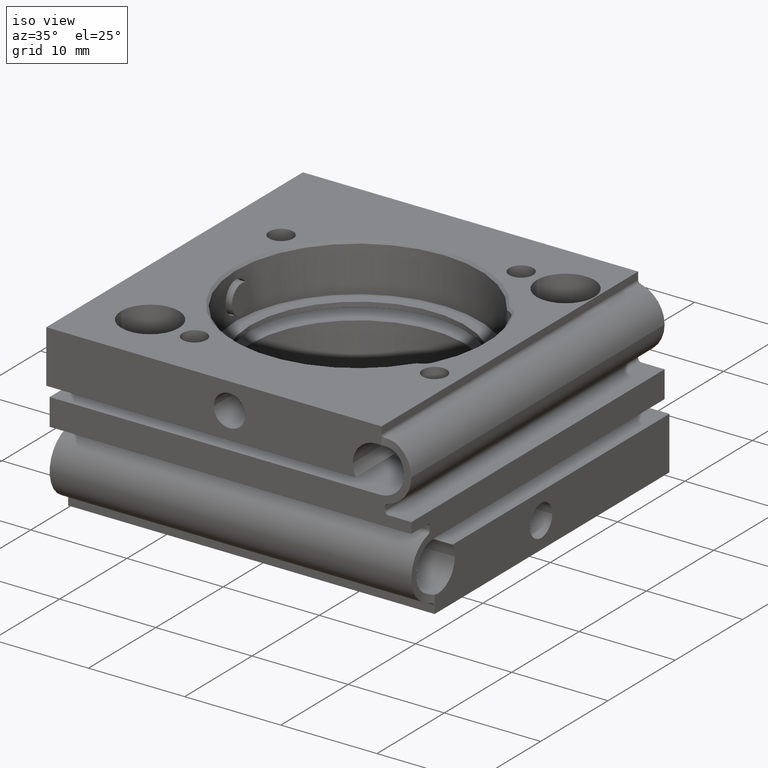
[diagram: clean part render]
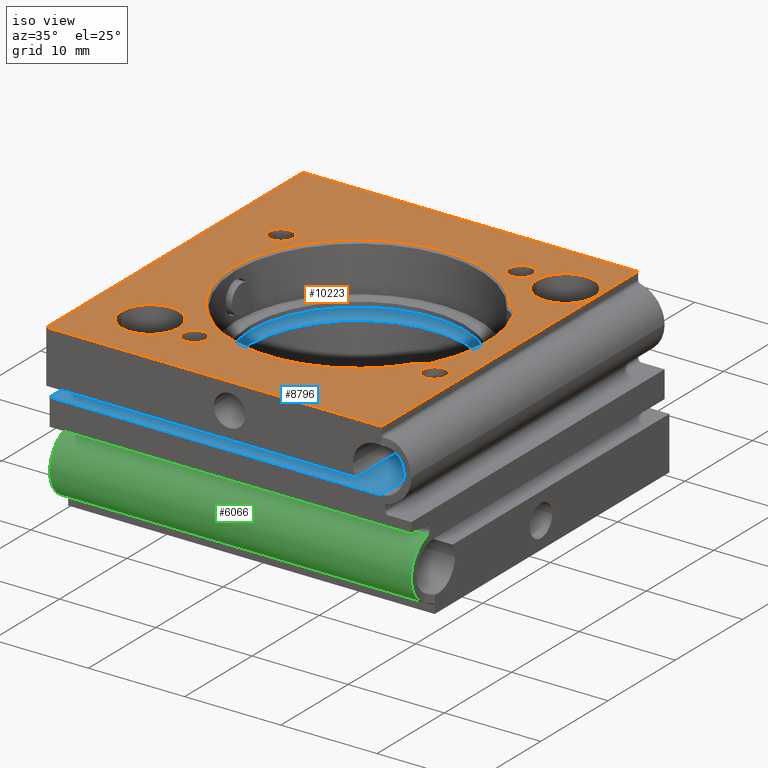
[diagram: same view with three faces highlighted in distinct colors, each labeled with its STEP entity id]
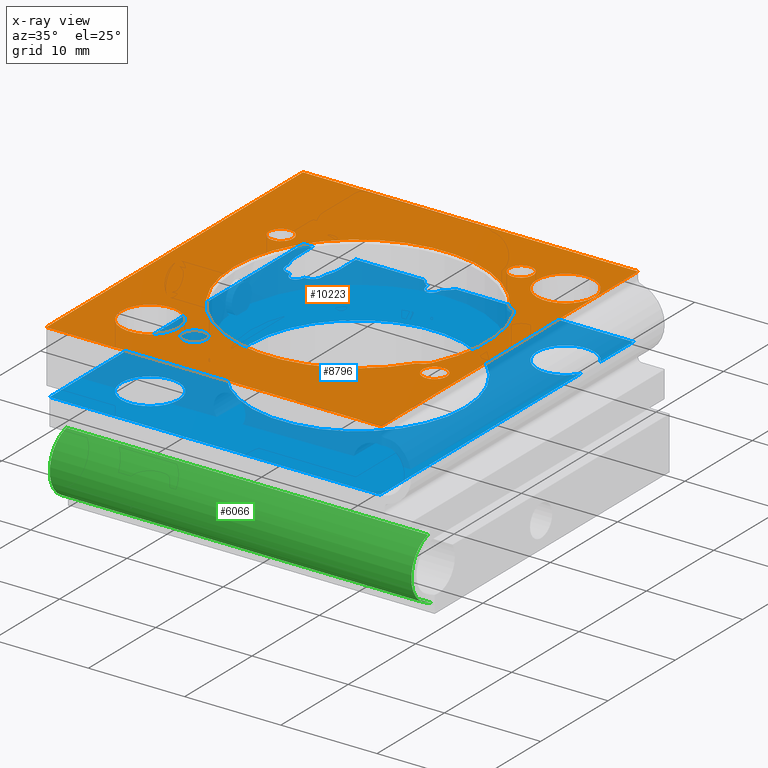
[diagram: x-ray of the same camera — body ghosted, the three highlighted faces saturated]
A machine part, iso view with three faces highlighted in distinct colors.
The next image is the same camera in x-ray (body ghosted, the three faces saturated) — at least one of them is partly hidden behind the body in this view.
Their STEP definitions:

[orange] entity #10223 — the highlighted planar face has unit normal (-0, 0, 1).
#19 = CARTESIAN_POINT ( 'NONE',  ( 9.700000000000002842, 12.69999999999999929, 9.000000000000000000 ) ) ;
#210 = CARTESIAN_POINT ( 'NONE',  ( 10.89931786564162763, 6.993380446086537638, 9.000000000000000000 ) ) ;
#227 = LINE ( 'NONE', #6826, #1547 ) ;
#228 = DIRECTION ( 'NONE',  ( -1.000000000000000000, 0.000000000000000000, 0.000000000000000000 ) ) ;
#270 = EDGE_CURVE ( 'NONE', #7670, #9211, #3784, .T. ) ;
#280 = EDGE_CURVE ( 'NONE', #3915, #8529, #9356, .T. ) ;
#284 = ORIENTED_EDGE ( 'NONE', *, *, #7965, .T. ) ;
#429 = ORIENTED_EDGE ( 'NONE', *, *, #5599, .F. ) ;
#499 = CARTESIAN_POINT ( 'NONE',  ( -12.08092328289552064, 7.640872621995082881, 9.000000000000000000 ) ) ;
#502 = ORIENTED_EDGE ( 'NONE', *, *, #1800, .T. ) ;
#615 = ORIENTED_EDGE ( 'NONE', *, *, #6510, .F. ) ;
#701 = EDGE_CURVE ( 'NONE', #6664, #1889, #6578, .T. ) ;
#711 = VERTEX_POINT ( 'NONE', #19 ) ;
#843 = CARTESIAN_POINT ( 'NONE',  ( 12.02808607394486273, 6.018940554430987966, 9.000000000000000000 ) ) ;
#869 = FACE_BOUND ( 'NONE', #2521, .T. ) ;
#939 = AXIS2_PLACEMENT_3D ( 'NONE', #5996, #1731, #228 ) ;
#949 = EDGE_CURVE ( 'NONE', #7839, #9168, #227, .T. ) ;
#1082 = ORIENTED_EDGE ( 'NONE', *, *, #4920, .T. ) ;
#1119 = EDGE_CURVE ( 'NONE', #9662, #8406, #6816, .T. ) ;
#1146 = ORIENTED_EDGE ( 'NONE', *, *, #9761, .T. ) ;
#1173 = CARTESIAN_POINT ( 'NONE',  ( 15.70000000000000284, 12.69999999999999929, 9.000000000000000000 ) ) ;
#1205 = CARTESIAN_POINT ( 'NONE',  ( -14.58092328289551887, 7.640872621995082881, 9.000000000000000000 ) ) ;
#1294 = CARTESIAN_POINT ( 'NONE',  ( 12.08092328289552242, -7.640872621995083769, 9.000000000000000000 ) ) ;
#1323 = DIRECTION ( 'NONE',  ( -1.000000000000000000, 0.000000000000000000, 0.000000000000000000 ) ) ;
#1439 = AXIS2_PLACEMENT_3D ( 'NONE', #6461, #9715, #3918 ) ;
#1453 = AXIS2_PLACEMENT_3D ( 'NONE', #1859, #2733, #6030 ) ;
#1501 = CIRCLE ( 'NONE', #9333, 1.249999999999999334 ) ;
#1547 = VECTOR ( 'NONE', #9190, 1000.000000000000000 ) ;
#1549 = CARTESIAN_POINT ( 'NONE',  ( -15.70000000000000284, -12.69999999999999751, 9.000000000000000000 ) ) ;
#1633 = CIRCLE ( 'NONE', #2934, 1.249999999999999334 ) ;
#1646 = CARTESIAN_POINT ( 'NONE',  ( -8.320017359752857790E-32, 4.996003610813203446E-16, 9.000000000000000000 ) ) ;
#1659 = DIRECTION ( 'NONE',  ( -1.000000000000000000, -9.912705577010269343E-16, 0.000000000000000000 ) ) ;
#1731 = DIRECTION ( 'NONE',  ( -9.244463733058732095E-33, 5.551115123125781470E-17, 1.000000000000000000 ) ) ;
#1800 = EDGE_CURVE ( 'NONE', #10537, #9597, #6348, .T. ) ;
#1859 = CARTESIAN_POINT ( 'NONE',  ( -7.640872621995085545, -13.33092328289552597, 9.000000000000000000 ) ) ;
#1868 = CARTESIAN_POINT ( 'NONE',  ( 10.46309346209328694, -5.235807025044056928, 9.000000000000000000 ) ) ;
#1869 = AXIS2_PLACEMENT_3D ( 'NONE', #10197, #4341, #7660 ) ;
#1881 = CARTESIAN_POINT ( 'NONE',  ( -9.700000000000006395, -12.69999999999999751, 9.000000000000000000 ) ) ;
#1889 = VERTEX_POINT ( 'NONE', #2131 ) ;
#2012 = DIRECTION ( 'NONE',  ( -1.000000000000000000, 0.000000000000000000, 0.000000000000000000 ) ) ;
#2085 = DIRECTION ( 'NONE',  ( -9.244463733058732095E-33, 5.551115123125781470E-17, 1.000000000000000000 ) ) ;
#2101 = CARTESIAN_POINT ( 'NONE',  ( 11.10972940744936466, -7.128387790605581920, 9.000000000000000000 ) ) ;
#2105 = CARTESIAN_POINT ( 'NONE',  ( 11.02889991427986693, 6.891815194910396514, 9.000000000000000000 ) ) ;
#2131 = CARTESIAN_POINT ( 'NONE',  ( 6.390872621995084657, 13.33092328289552597, 9.000000000000000000 ) ) ;
#2233 = AXIS2_PLACEMENT_3D ( 'NONE', #3533, #4183, #7555 ) ;
#2289 = CARTESIAN_POINT ( 'NONE',  ( -12.70000000000000462, -12.69999999999999751, 9.000000000000000000 ) ) ;
#2297 = CIRCLE ( 'NONE', #4903, 0.2499999999999898137 ) ;
#2334 = LINE ( 'NONE', #8977, #10443 ) ;
#2383 = DIRECTION ( 'NONE',  ( -9.823725385216690060E-17, -1.000000000000000000, 5.551115123125782702E-17 ) ) ;
#2397 = ORIENTED_EDGE ( 'NONE', *, *, #4162, .T. ) ;
#2418 = CIRCLE ( 'NONE', #2941, 1.249999999999999334 ) ;
#2479 = AXIS2_PLACEMENT_3D ( 'NONE', #9495, #7179, #3761 ) ;
#2521 = EDGE_LOOP ( 'NONE', ( #7474, #10691 ) ) ;
#2548 = ORIENTED_EDGE ( 'NONE', *, *, #7521, .T. ) ;
#2566 = CIRCLE ( 'NONE', #6715, 2.999999999999999112 ) ;
#2733 = DIRECTION ( 'NONE',  ( -9.244463733058732095E-33, 5.551115123125781470E-17, 1.000000000000000000 ) ) ;
#2805 = VERTEX_POINT ( 'NONE', #1549 ) ;
#2934 = AXIS2_PLACEMENT_3D ( 'NONE', #4582, #2085, #1323 ) ;
#2941 = AXIS2_PLACEMENT_3D ( 'NONE', #7117, #3706, #2012 ) ;
#2961 = EDGE_CURVE ( 'NONE', #6043, #6179, #1633, .T. ) ;
#3051 = DIRECTION ( 'NONE',  ( -1.000000000000000000, 0.000000000000000000, 0.000000000000000000 ) ) ;
#3237 = CARTESIAN_POINT ( 'NONE',  ( 10.46309346209329227, 5.235807025044052487, 9.000000000000000000 ) ) ;
#3243 = CIRCLE ( 'NONE', #7758, 12.95000000000001172 ) ;
#3336 = EDGE_CURVE ( 'NONE', #6179, #6043, #2418, .T. ) ;
#3466 = FACE_OUTER_BOUND ( 'NONE', #4840, .T. ) ;
#3533 = CARTESIAN_POINT ( 'NONE',  ( -13.33092328289551887, 7.640872621995082881, 9.000000000000000000 ) ) ;
#3577 = CARTESIAN_POINT ( 'NONE',  ( 15.79999999999999893, -19.04999999999999716, 9.000000000000001776 ) ) ;
#3604 = ORIENTED_EDGE ( 'NONE', *, *, #280, .F. ) ;
#3680 = LINE ( 'NONE', #8522, #10154 ) ;
#3684 = DIRECTION ( 'NONE',  ( -1.000000000000000000, 0.000000000000000000, 0.000000000000000000 ) ) ;
#3706 = DIRECTION ( 'NONE',  ( -9.244463733058732095E-33, 5.551115123125781470E-17, 1.000000000000000000 ) ) ;
#3761 = DIRECTION ( 'NONE',  ( -1.000000000000000000, 0.000000000000000000, 0.000000000000000000 ) ) ;
#3784 = CIRCLE ( 'NONE', #1869, 13.45000000000001172 ) ;
#3787 = DIRECTION ( 'NONE',  ( -9.244463733058732095E-33, 5.551115123125781470E-17, 1.000000000000000000 ) ) ;
#3803 = ORIENTED_EDGE ( 'NONE', *, *, #1119, .T. ) ;
#3840 = DIRECTION ( 'NONE',  ( -1.000000000000000000, 0.000000000000000000, 0.000000000000000000 ) ) ;
#3915 = VERTEX_POINT ( 'NONE', #499 ) ;
#3918 = DIRECTION ( 'NONE',  ( -1.000000000000000000, 0.000000000000000000, 0.000000000000000000 ) ) ;
#3931 = EDGE_LOOP ( 'NONE', ( #5281, #8645 ) ) ;
#3972 = DIRECTION ( 'NONE',  ( -9.244463733058732095E-33, 5.551115123125781470E-17, 1.000000000000000000 ) ) ;
#4036 = CIRCLE ( 'NONE', #1439, 1.249999999999999334 ) ;
#4046 = CARTESIAN_POINT ( 'NONE',  ( 12.70000000000000107, 12.69999999999999929, 9.000000000000000000 ) ) ;
#4067 = CARTESIAN_POINT ( 'NONE',  ( 14.58092328289552064, -7.640872621995083769, 9.000000000000000000 ) ) ;
#4162 = EDGE_CURVE ( 'NONE', #5257, #7839, #3680, .T. ) ;
#4171 = FACE_BOUND ( 'NONE', #5552, .T. ) ;
#4183 = DIRECTION ( 'NONE',  ( -9.244463733058732095E-33, 5.551115123125781470E-17, 1.000000000000000000 ) ) ;
#4226 = ORIENTED_EDGE ( 'NONE', *, *, #270, .T. ) ;
#4258 = CARTESIAN_POINT ( 'NONE',  ( -12.95000000000001172, 1.218469769526109855E-15, 9.000000000000000000 ) ) ;
#4298 = VECTOR ( 'NONE', #8081, 1000.000000000000000 ) ;
#4341 = DIRECTION ( 'NONE',  ( 9.244463733058732095E-33, -5.551115123125781470E-17, -1.000000000000000000 ) ) ;
#4381 = DIRECTION ( 'NONE',  ( -1.000000000000000000, -3.555044855755094693E-17, -7.271017406841471175E-33 ) ) ;
#4446 = CIRCLE ( 'NONE', #10035, 1.750000000000011990 ) ;
#4492 = DIRECTION ( 'NONE',  ( -9.244463733058732095E-33, 5.551115123125781470E-17, 1.000000000000000000 ) ) ;
#4582 = CARTESIAN_POINT ( 'NONE',  ( 13.33092328289552064, -7.640872621995083769, 9.000000000000000000 ) ) ;
#4631 = CARTESIAN_POINT ( 'NONE',  ( -8.320017359752857790E-32, 4.996003610813203446E-16, 9.000000000000000000 ) ) ;
#4633 = EDGE_CURVE ( 'NONE', #10214, #2805, #10314, .T. ) ;
#4693 = DIRECTION ( 'NONE',  ( 9.244463733058732095E-33, -5.551115123125781470E-17, -1.000000000000000000 ) ) ;
#4831 = CIRCLE ( 'NONE', #5680, 1.750000000000010214 ) ;
#4836 = ORIENTED_EDGE ( 'NONE', *, *, #4633, .F. ) ;
#4840 = EDGE_LOOP ( 'NONE', ( #7217, #2397, #9682, #2548 ) ) ;
#4899 = VERTEX_POINT ( 'NONE', #6383 ) ;
#4903 = AXIS2_PLACEMENT_3D ( 'NONE', #6266, #3787, #3840 ) ;
#4920 = EDGE_CURVE ( 'NONE', #9597, #8873, #2297, .T. ) ;
#4935 = DIRECTION ( 'NONE',  ( -1.000000000000000000, 0.000000000000000000, 0.000000000000000000 ) ) ;
#5172 = EDGE_LOOP ( 'NONE', ( #10453, #3604 ) ) ;
#5178 = DIRECTION ( 'NONE',  ( -1.000000000000000000, 0.000000000000000000, 0.000000000000000000 ) ) ;
#5257 = VERTEX_POINT ( 'NONE', #7190 ) ;
#5281 = ORIENTED_EDGE ( 'NONE', *, *, #10313, .F. ) ;
#5395 = CARTESIAN_POINT ( 'NONE',  ( 11.02889991427985805, -6.891815194910403619, 9.000000000000000000 ) ) ;
#5413 = DIRECTION ( 'NONE',  ( -9.244463733058732095E-33, 5.551115123125781470E-17, 1.000000000000000000 ) ) ;
#5508 = DIRECTION ( 'NONE',  ( -9.244463733058732095E-33, 5.551115123125781470E-17, 1.000000000000000000 ) ) ;
#5552 = EDGE_LOOP ( 'NONE', ( #6508, #615 ) ) ;
#5573 = VERTEX_POINT ( 'NONE', #6027 ) ;
#5599 = EDGE_CURVE ( 'NONE', #2805, #10214, #8212, .T. ) ;
#5680 = AXIS2_PLACEMENT_3D ( 'NONE', #3237, #7582, #1659 ) ;
#5713 = EDGE_CURVE ( 'NONE', #4899, #5573, #4036, .T. ) ;
#5816 = CARTESIAN_POINT ( 'NONE',  ( 10.89931786564162053, -6.993380446086542079, 9.000000000000000000 ) ) ;
#5839 = AXIS2_PLACEMENT_3D ( 'NONE', #7486, #6768, #10131 ) ;
#5874 = DIRECTION ( 'NONE',  ( -1.000000000000000000, 5.551115123125783935E-17, 0.000000000000000000 ) ) ;
#5941 = CARTESIAN_POINT ( 'NONE',  ( -19.05000000000000782, -19.05000000000000426, 9.000000000000001776 ) ) ;
#5989 = FACE_BOUND ( 'NONE', #7244, .T. ) ;
#5996 = CARTESIAN_POINT ( 'NONE',  ( -13.33092328289551887, 7.640872621995082881, 9.000000000000000000 ) ) ;
#6027 = CARTESIAN_POINT ( 'NONE',  ( -6.390872621995086433, -13.33092328289552597, 9.000000000000000000 ) ) ;
#6030 = DIRECTION ( 'NONE',  ( -1.000000000000000000, 0.000000000000000000, 0.000000000000000000 ) ) ;
#6043 = VERTEX_POINT ( 'NONE', #4067 ) ;
#6086 = AXIS2_PLACEMENT_3D ( 'NONE', #2289, #3972, #3051 ) ;
#6092 = EDGE_CURVE ( 'NONE', #8529, #3915, #9098, .T. ) ;
#6179 = VERTEX_POINT ( 'NONE', #1294 ) ;
#6266 = CARTESIAN_POINT ( 'NONE',  ( 11.10972940744937354, 7.128387790605577479, 9.000000000000000000 ) ) ;
#6348 = CIRCLE ( 'NONE', #6904, 12.95000000000001172 ) ;
#6378 = DIRECTION ( 'NONE',  ( -9.244463733058732095E-33, 5.551115123125781470E-17, 1.000000000000000000 ) ) ;
#6383 = CARTESIAN_POINT ( 'NONE',  ( -8.890872621995084657, -13.33092328289552597, 9.000000000000000000 ) ) ;
#6452 = ORIENTED_EDGE ( 'NONE', *, *, #701, .F. ) ;
#6461 = CARTESIAN_POINT ( 'NONE',  ( -7.640872621995085545, -13.33092328289552597, 9.000000000000000000 ) ) ;
#6508 = ORIENTED_EDGE ( 'NONE', *, *, #5713, .F. ) ;
#6510 = EDGE_CURVE ( 'NONE', #5573, #4899, #6823, .T. ) ;
#6544 = CARTESIAN_POINT ( 'NONE',  ( 19.04999999999999361, -19.04999999999999361, 9.000000000000001776 ) ) ;
#6578 = CIRCLE ( 'NONE', #7980, 1.249999999999999334 ) ;
#6659 = FACE_BOUND ( 'NONE', #9991, .T. ) ;
#6664 = VERTEX_POINT ( 'NONE', #10488 ) ;
#6689 = DIRECTION ( 'NONE',  ( 9.244463733058732095E-33, -5.551115123125781470E-17, -1.000000000000000000 ) ) ;
#6715 = AXIS2_PLACEMENT_3D ( 'NONE', #7748, #4492, #9514 ) ;
#6768 = DIRECTION ( 'NONE',  ( -9.244463733058732095E-33, 5.551115123125781470E-17, 1.000000000000000000 ) ) ;
#6816 = CIRCLE ( 'NONE', #7169, 0.2499999999999880651 ) ;
#6823 = CIRCLE ( 'NONE', #1453, 1.249999999999999334 ) ;
#6826 = CARTESIAN_POINT ( 'NONE',  ( -19.05000000000000071, 19.04999999999999716, 8.999999999999998224 ) ) ;
#6904 = AXIS2_PLACEMENT_3D ( 'NONE', #1646, #6689, #5874 ) ;
#7117 = CARTESIAN_POINT ( 'NONE',  ( 13.33092328289552064, -7.640872621995083769, 9.000000000000000000 ) ) ;
#7169 = AXIS2_PLACEMENT_3D ( 'NONE', #2101, #5413, #3684 ) ;
#7179 = DIRECTION ( 'NONE',  ( -9.244463733058732095E-33, 5.551115123125781470E-17, 1.000000000000000000 ) ) ;
#7190 = CARTESIAN_POINT ( 'NONE',  ( 15.80000000000000071, 19.05000000000000071, 8.999999999999998224 ) ) ;
#7204 = CARTESIAN_POINT ( 'NONE',  ( -19.05000000000000071, 19.04999999999999716, 8.999999999999998224 ) ) ;
#7207 = LINE ( 'NONE', #6544, #4298 ) ;
#7217 = ORIENTED_EDGE ( 'NONE', *, *, #8680, .F. ) ;
#7244 = EDGE_LOOP ( 'NONE', ( #429, #4836 ) ) ;
#7474 = ORIENTED_EDGE ( 'NONE', *, *, #3336, .F. ) ;
#7486 = CARTESIAN_POINT ( 'NONE',  ( -8.320017359752857790E-32, 4.996003610813203446E-16, 9.000000000000000000 ) ) ;
#7521 = EDGE_CURVE ( 'NONE', #9168, #8946, #7207, .T. ) ;
#7555 = DIRECTION ( 'NONE',  ( -1.000000000000000000, 0.000000000000000000, 0.000000000000000000 ) ) ;
#7582 = DIRECTION ( 'NONE',  ( 9.244463733058732095E-33, -5.551115123125781470E-17, -1.000000000000000000 ) ) ;
#7586 = FACE_BOUND ( 'NONE', #8792, .T. ) ;
#7660 = DIRECTION ( 'NONE',  ( -1.000000000000000000, -1.720845688168992638E-15, 0.000000000000000000 ) ) ;
#7670 = VERTEX_POINT ( 'NONE', #843 ) ;
#7748 = CARTESIAN_POINT ( 'NONE',  ( 12.70000000000000107, 12.69999999999999929, 9.000000000000000000 ) ) ;
#7758 = AXIS2_PLACEMENT_3D ( 'NONE', #4631, #4693, #8008 ) ;
#7813 = AXIS2_PLACEMENT_3D ( 'NONE', #4046, #5508, #8017 ) ;
#7839 = VERTEX_POINT ( 'NONE', #7204 ) ;
#7857 = CARTESIAN_POINT ( 'NONE',  ( 12.02808607394485740, -6.018940554430993295, 9.000000000000000000 ) ) ;
#7965 = EDGE_CURVE ( 'NONE', #8873, #7670, #4831, .T. ) ;
#7980 = AXIS2_PLACEMENT_3D ( 'NONE', #8089, #10637, #4935 ) ;
#8008 = DIRECTION ( 'NONE',  ( -1.000000000000000000, 5.551115123125783935E-17, 0.000000000000000000 ) ) ;
#8017 = DIRECTION ( 'NONE',  ( -1.000000000000000000, 0.000000000000000000, 0.000000000000000000 ) ) ;
#8019 = CARTESIAN_POINT ( 'NONE',  ( 7.640872621995083769, 13.33092328289552597, 9.000000000000000000 ) ) ;
#8081 = DIRECTION ( 'NONE',  ( 1.000000000000000000, 2.176736481351684948E-16, -2.838851067632206078E-33 ) ) ;
#8089 = CARTESIAN_POINT ( 'NONE',  ( 7.640872621995083769, 13.33092328289552597, 9.000000000000000000 ) ) ;
#8212 = CIRCLE ( 'NONE', #2479, 2.999999999999997335 ) ;
#8307 = FACE_BOUND ( 'NONE', #3931, .T. ) ;
#8406 = VERTEX_POINT ( 'NONE', #5816 ) ;
#8522 = CARTESIAN_POINT ( 'NONE',  ( 19.05000000000000071, 19.05000000000000071, 8.999999999999998224 ) ) ;
#8529 = VERTEX_POINT ( 'NONE', #1205 ) ;
#8561 = DIRECTION ( 'NONE',  ( 9.244463733058732095E-33, -5.551115123125781470E-17, -1.000000000000000000 ) ) ;
#8645 = ORIENTED_EDGE ( 'NONE', *, *, #9342, .F. ) ;
#8680 = EDGE_CURVE ( 'NONE', #5257, #8946, #2334, .T. ) ;
#8792 = EDGE_LOOP ( 'NONE', ( #3803, #1146, #502, #1082, #284, #4226, #9147 ) ) ;
#8873 = VERTEX_POINT ( 'NONE', #2105 ) ;
#8946 = VERTEX_POINT ( 'NONE', #3577 ) ;
#8977 = CARTESIAN_POINT ( 'NONE',  ( 15.80000000000000071, 19.05000000000000426, 8.999999999999998224 ) ) ;
#9098 = CIRCLE ( 'NONE', #939, 1.249999999999999334 ) ;
#9147 = ORIENTED_EDGE ( 'NONE', *, *, #10659, .T. ) ;
#9168 = VERTEX_POINT ( 'NONE', #5941 ) ;
#9190 = DIRECTION ( 'NONE',  ( -1.665334536937734811E-16, -1.000000000000000000, 5.551115123125782702E-17 ) ) ;
#9211 = VERTEX_POINT ( 'NONE', #7857 ) ;
#9300 = FACE_BOUND ( 'NONE', #5172, .T. ) ;
#9333 = AXIS2_PLACEMENT_3D ( 'NONE', #8019, #6378, #10556 ) ;
#9342 = EDGE_CURVE ( 'NONE', #10643, #711, #9928, .T. ) ;
#9356 = CIRCLE ( 'NONE', #2233, 1.249999999999999334 ) ;
#9495 = CARTESIAN_POINT ( 'NONE',  ( -12.70000000000000462, -12.69999999999999751, 9.000000000000000000 ) ) ;
#9514 = DIRECTION ( 'NONE',  ( -1.000000000000000000, 0.000000000000000000, 0.000000000000000000 ) ) ;
#9597 = VERTEX_POINT ( 'NONE', #210 ) ;
#9662 = VERTEX_POINT ( 'NONE', #5395 ) ;
#9682 = ORIENTED_EDGE ( 'NONE', *, *, #949, .T. ) ;
#9715 = DIRECTION ( 'NONE',  ( -9.244463733058732095E-33, 5.551115123125781470E-17, 1.000000000000000000 ) ) ;
#9739 = ORIENTED_EDGE ( 'NONE', *, *, #10469, .F. ) ;
#9761 = EDGE_CURVE ( 'NONE', #8406, #10537, #3243, .T. ) ;
#9928 = CIRCLE ( 'NONE', #7813, 2.999999999999999112 ) ;
#9991 = EDGE_LOOP ( 'NONE', ( #9739, #6452 ) ) ;
#10018 = PLANE ( 'NONE',  #5839 ) ;
#10035 = AXIS2_PLACEMENT_3D ( 'NONE', #1868, #8561, #5178 ) ;
#10131 = DIRECTION ( 'NONE',  ( -1.000000000000000000, 5.551115123125782702E-17, -1.232595164407830946E-32 ) ) ;
#10154 = VECTOR ( 'NONE', #4381, 1000.000000000000000 ) ;
#10197 = CARTESIAN_POINT ( 'NONE',  ( -8.320017359752857790E-32, 4.996003610813203446E-16, 9.000000000000000000 ) ) ;
#10214 = VERTEX_POINT ( 'NONE', #1881 ) ;
#10223 = ADVANCED_FACE ( 'NONE', ( #8307, #5989, #7586, #9300, #869, #6659, #4171, #3466 ), #10018, .T. ) ;
#10313 = EDGE_CURVE ( 'NONE', #711, #10643, #2566, .T. ) ;
#10314 = CIRCLE ( 'NONE', #6086, 2.999999999999997335 ) ;
#10443 = VECTOR ( 'NONE', #2383, 1000.000000000000000 ) ;
#10453 = ORIENTED_EDGE ( 'NONE', *, *, #6092, .F. ) ;
#10469 = EDGE_CURVE ( 'NONE', #1889, #6664, #1501, .T. ) ;
#10488 = CARTESIAN_POINT ( 'NONE',  ( 8.890872621995082881, 13.33092328289552597, 9.000000000000000000 ) ) ;
#10537 = VERTEX_POINT ( 'NONE', #4258 ) ;
#10556 = DIRECTION ( 'NONE',  ( -1.000000000000000000, 0.000000000000000000, 0.000000000000000000 ) ) ;
#10637 = DIRECTION ( 'NONE',  ( -9.244463733058732095E-33, 5.551115123125781470E-17, 1.000000000000000000 ) ) ;
#10643 = VERTEX_POINT ( 'NONE', #1173 ) ;
#10659 = EDGE_CURVE ( 'NONE', #9211, #9662, #4446, .T. ) ;
#10691 = ORIENTED_EDGE ( 'NONE', *, *, #2961, .F. ) ;

[blue] entity #8796 — the highlighted planar face has unit normal (0, -0, -1).
#23 = DIRECTION ( 'NONE',  ( 1.000000000000000000, -5.551115123125782702E-17, 1.232595164407830946E-32 ) ) ;
#54 = VERTEX_POINT ( 'NONE', #6345 ) ;
#87 = DIRECTION ( 'NONE',  ( 9.244463733058732095E-33, -5.551115123125781470E-17, -1.000000000000000000 ) ) ;
#291 = VERTEX_POINT ( 'NONE', #2553 ) ;
#357 = CARTESIAN_POINT ( 'NONE',  ( -13.90016448080366374, 14.54999999999999361, 2.249999999999997780 ) ) ;
#382 = DIRECTION ( 'NONE',  ( 9.244463733058732095E-33, -5.551115123125781470E-17, -1.000000000000000000 ) ) ;
#394 = DIRECTION ( 'NONE',  ( -3.835514583104628497E-17, 1.000000000000000000, -5.551115123125782086E-17 ) ) ;
#487 = VECTOR ( 'NONE', #7236, 1000.000000000000000 ) ;
#488 = B_SPLINE_CURVE_WITH_KNOTS ( 'NONE', 3,
 ( #1473, #3806, #3202, #8926, #4781, #1360, #6450, #2335, #6502, #2988 ),
 .UNSPECIFIED., .F., .F.,
 ( 4, 2, 2, 2, 4 ),
 ( 0.000000000000000000, 0.0004147750578950951160, 0.0008295501157901902321, 0.001244325173685285457, 0.001659100231580380464 ),
 .UNSPECIFIED. ) ;
#510 = ORIENTED_EDGE ( 'NONE', *, *, #10775, .T. ) ;
#521 = LINE ( 'NONE', #3763, #1512 ) ;
#606 = VECTOR ( 'NONE', #10332, 1000.000000000000000 ) ;
#644 = DIRECTION ( 'NONE',  ( 9.244463733058732095E-33, -5.551115123125781470E-17, -1.000000000000000000 ) ) ;
#667 = ORIENTED_EDGE ( 'NONE', *, *, #7432, .T. ) ;
#731 = VECTOR ( 'NONE', #6493, 1000.000000000000000 ) ;
#775 = CARTESIAN_POINT ( 'NONE',  ( -2.080004339938213353E-32, 1.249000902703300122E-16, 2.249999999999998668 ) ) ;
#800 = CARTESIAN_POINT ( 'NONE',  ( -9.700000000000006395, -12.69999999999999751, 2.249999999999999556 ) ) ;
#861 = CARTESIAN_POINT ( 'NONE',  ( 15.29999999999999893, 19.05000000000000071, 2.249999999999997780 ) ) ;
#877 = FACE_BOUND ( 'NONE', #903, .T. ) ;
#903 = EDGE_LOOP ( 'NONE', ( #5969, #2951 ) ) ;
#907 = LINE ( 'NONE', #6592, #4101 ) ;
#963 = CARTESIAN_POINT ( 'NONE',  ( 15.29999999999999893, 19.05000000000000071, 2.249999999999997780 ) ) ;
#1007 = LINE ( 'NONE', #10001, #7751 ) ;
#1010 = AXIS2_PLACEMENT_3D ( 'NONE', #1286, #382, #2856 ) ;
#1152 = ORIENTED_EDGE ( 'NONE', *, *, #6648, .T. ) ;
#1177 = CIRCLE ( 'NONE', #1010, 2.999999999999997335 ) ;
#1183 = ORIENTED_EDGE ( 'NONE', *, *, #2099, .T. ) ;
#1208 = VERTEX_POINT ( 'NONE', #6541 ) ;
#1238 = EDGE_CURVE ( 'NONE', #8664, #9807, #4448, .T. ) ;
#1248 = ORIENTED_EDGE ( 'NONE', *, *, #10593, .F. ) ;
#1286 = CARTESIAN_POINT ( 'NONE',  ( -12.70000000000000462, -12.69999999999999751, 2.249999999999999556 ) ) ;
#1307 = ORIENTED_EDGE ( 'NONE', *, *, #8172, .T. ) ;
#1330 = VERTEX_POINT ( 'NONE', #6653 ) ;
#1360 = CARTESIAN_POINT ( 'NONE',  ( -17.46276535541081643, 13.90481478144035599, 2.249999999999998224 ) ) ;
#1362 = ORIENTED_EDGE ( 'NONE', *, *, #7222, .T. ) ;
#1389 = ORIENTED_EDGE ( 'NONE', *, *, #3926, .T. ) ;
#1397 = DIRECTION ( 'NONE',  ( -3.835514583104628497E-17, 1.000000000000000000, -5.551115123125782086E-17 ) ) ;
#1462 = ORIENTED_EDGE ( 'NONE', *, *, #4534, .T. ) ;
#1473 = CARTESIAN_POINT ( 'NONE',  ( -16.58062474979979939, 13.54999999999999538, 2.249999999999997780 ) ) ;
#1496 = CARTESIAN_POINT ( 'NONE',  ( -13.54999999999999005, 16.11742028607349297, 2.249999999999997780 ) ) ;
#1512 = VECTOR ( 'NONE', #2082, 1000.000000000000000 ) ;
#1529 =( BOUNDED_CURVE ( )  B_SPLINE_CURVE ( 3, ( #2358, #1496, #2307, #3991 ),
 .UNSPECIFIED., .F., .F. ) 
 B_SPLINE_CURVE_WITH_KNOTS ( ( 4, 4 ),
 ( 1.570796326794896558, 2.136201972407043570 ),
 .UNSPECIFIED. ) 
 CURVE ( )  GEOMETRIC_REPRESENTATION_ITEM ( )  RATIONAL_B_SPLINE_CURVE ( ( 1.000000000000000000, 0.9735366589981021557, 0.9735366589981021557, 1.000000000000000000 ) ) 
 REPRESENTATION_ITEM ( '' )  );
#1539 = VECTOR ( 'NONE', #5594, 1000.000000000000000 ) ;
#1554 = AXIS2_PLACEMENT_3D ( 'NONE', #9359, #7439, #23 ) ;
#1589 = VERTEX_POINT ( 'NONE', #800 ) ;
#1625 = DIRECTION ( 'NONE',  ( 1.000000000000000000, -5.551115123125782702E-17, 0.000000000000000000 ) ) ;
#1635 = DIRECTION ( 'NONE',  ( 1.000000000000000000, -5.551115123125782702E-17, 0.000000000000000000 ) ) ;
#1671 = VERTEX_POINT ( 'NONE', #4911 ) ;
#1761 = CARTESIAN_POINT ( 'NONE',  ( 15.29999999999999893, 14.19666295470957351, 2.249999999999997780 ) ) ;
#1764 = DIRECTION ( 'NONE',  ( 1.000000000000000000, 1.647413892140130501E-16, 9.947956235214801286E-35 ) ) ;
#1766 = CIRCLE ( 'NONE', #9249, 2.999999999999997335 ) ;
#1801 = EDGE_CURVE ( 'NONE', #54, #1927, #1007, .T. ) ;
#1812 =( BOUNDED_CURVE ( )  B_SPLINE_CURVE ( 3, ( #8945, #4632, #7237, #7134 ),
 .UNSPECIFIED., .F., .T. ) 
 B_SPLINE_CURVE_WITH_KNOTS ( ( 4, 4 ),
 ( 3.141592653589793116, 4.494593790276759648 ),
 .UNSPECIFIED. ) 
 CURVE ( )  GEOMETRIC_REPRESENTATION_ITEM ( )  RATIONAL_B_SPLINE_CURVE ( ( 1.000000000000000000, 0.8531789142613975807, 0.8531789142613975807, 1.000000000000000000 ) ) 
 REPRESENTATION_ITEM ( '' )  );
#1867 = AXIS2_PLACEMENT_3D ( 'NONE', #775, #3097, #1625 ) ;
#1870 = EDGE_CURVE ( 'NONE', #5633, #7672, #521, .T. ) ;
#1927 = VERTEX_POINT ( 'NONE', #6083 ) ;
#2059 = EDGE_CURVE ( 'NONE', #3195, #3321, #6415, .T. ) ;
#2082 = DIRECTION ( 'NONE',  ( -1.000000000000000000, -1.464944937150952661E-16, -1.112385737893530880E-33 ) ) ;
#2099 = EDGE_CURVE ( 'NONE', #3321, #6063, #10767, .T. ) ;
#2129 = VERTEX_POINT ( 'NONE', #4951 ) ;
#2132 = LINE ( 'NONE', #5336, #606 ) ;
#2133 = EDGE_LOOP ( 'NONE', ( #4605, #4518, #10569, #8754, #10359, #667, #6202, #1462, #4691, #5291, #5473, #1389, #2244, #4442, #1183, #1248, #1362, #510, #2834, #9292, #2912, #6948, #1152, #2372 ) ) ;
#2150 = EDGE_CURVE ( 'NONE', #291, #2722, #4659, .T. ) ;
#2153 = CARTESIAN_POINT ( 'NONE',  ( 12.70000000000000107, 12.69999999999999929, 2.249999999999997780 ) ) ;
#2171 = CARTESIAN_POINT ( 'NONE',  ( -17.93010570272582171, 15.53371594843453707, 2.249999999999997780 ) ) ;
#2182 = CARTESIAN_POINT ( 'NONE',  ( -15.06771782617729016, 13.54999999999999361, 2.249999999999997780 ) ) ;
#2225 =( BOUNDED_CURVE ( )  B_SPLINE_CURVE ( 3, ( #10193, #2494, #6721, #3578 ),
 .UNSPECIFIED., .F., .T. ) 
 B_SPLINE_CURVE_WITH_KNOTS ( ( 4, 4 ),
 ( 1.788591516902828804, 3.141592653589793116 ),
 .UNSPECIFIED. ) 
 CURVE ( )  GEOMETRIC_REPRESENTATION_ITEM ( )  RATIONAL_B_SPLINE_CURVE ( ( 1.000000000000000000, 0.8531789142613979138, 0.8531789142613979138, 1.000000000000000000 ) ) 
 REPRESENTATION_ITEM ( '' )  );
#2244 = ORIENTED_EDGE ( 'NONE', *, *, #8198, .T. ) ;
#2280 = CARTESIAN_POINT ( 'NONE',  ( -17.69983551919633058, 15.02047981957096745, 2.249999999999997780 ) ) ;
#2307 = CARTESIAN_POINT ( 'NONE',  ( -13.66989429727416372, 15.53371594843451753, 2.249999999999997780 ) ) ;
#2313 = LINE ( 'NONE', #5661, #5992 ) ;
#2335 = CARTESIAN_POINT ( 'NONE',  ( -17.66821416230750685, 14.26986416450332840, 2.249999999999998224 ) ) ;
#2358 = CARTESIAN_POINT ( 'NONE',  ( -13.54999999999999005, 16.72525253169417780, 2.249999999999997780 ) ) ;
#2372 = ORIENTED_EDGE ( 'NONE', *, *, #1870, .T. ) ;
#2399 = CARTESIAN_POINT ( 'NONE',  ( -13.93167557840670412, 14.27049530053909621, 2.249999999999998224 ) ) ;
#2450 = EDGE_CURVE ( 'NONE', #2734, #10121, #488, .T. ) ;
#2461 = EDGE_CURVE ( 'NONE', #8684, #1208, #10387, .T. ) ;
#2494 = CARTESIAN_POINT ( 'NONE',  ( -15.14699732134806887, 13.04337843197737001, 2.249999999999997780 ) ) ;
#2553 = CARTESIAN_POINT ( 'NONE',  ( -11.19999999999999751, 6.217248937900875246E-16, 2.249999999999998668 ) ) ;
#2600 = CARTESIAN_POINT ( 'NONE',  ( 15.30000000000000071, -18.54999999999999716, 2.249999999999999556 ) ) ;
#2622 = EDGE_CURVE ( 'NONE', #1589, #1330, #1177, .T. ) ;
#2657 = FACE_OUTER_BOUND ( 'NONE', #2133, .T. ) ;
#2702 = EDGE_CURVE ( 'NONE', #10121, #8684, #4755, .T. ) ;
#2711 = CARTESIAN_POINT ( 'NONE',  ( 15.29999999999999893, 13.54999999999999538, 2.249999999999997780 ) ) ;
#2722 = VERTEX_POINT ( 'NONE', #9116 ) ;
#2734 = VERTEX_POINT ( 'NONE', #9952 ) ;
#2832 = VECTOR ( 'NONE', #5899, 1000.000000000000000 ) ;
#2834 = ORIENTED_EDGE ( 'NONE', *, *, #3744, .F. ) ;
#2856 = DIRECTION ( 'NONE',  ( 1.000000000000000000, 0.000000000000000000, 0.000000000000000000 ) ) ;
#2892 = VERTEX_POINT ( 'NONE', #1761 ) ;
#2912 = ORIENTED_EDGE ( 'NONE', *, *, #2702, .T. ) ;
#2926 = DIRECTION ( 'NONE',  ( 1.000000000000000000, 1.647413892140130501E-16, 9.947956235214801286E-35 ) ) ;
#2951 = ORIENTED_EDGE ( 'NONE', *, *, #7160, .T. ) ;
#2988 = CARTESIAN_POINT ( 'NONE',  ( -17.69983551919633058, 14.54999999999999538, 2.249999999999997780 ) ) ;
#3003 = CARTESIAN_POINT ( 'NONE',  ( -14.87899213711029667, 13.54999999999999183, 2.249999999999997780 ) ) ;
#3027 = DIRECTION ( 'NONE',  ( 1.000000000000000000, 0.000000000000000000, 0.000000000000000000 ) ) ;
#3029 = CARTESIAN_POINT ( 'NONE',  ( -5.891439691763548758, 18.39597229420168034, 2.249999999999997780 ) ) ;
#3097 = DIRECTION ( 'NONE',  ( 9.244463733058732095E-33, -5.551115123125781470E-17, -1.000000000000000000 ) ) ;
#3126 = DIRECTION ( 'NONE',  ( -3.835514583104630962E-17, 1.000000000000000000, -5.551115123125782086E-17 ) ) ;
#3150 = CARTESIAN_POINT ( 'NONE',  ( -4.050000325579163452, 18.22525236890463773, 2.249999999999997780 ) ) ;
#3195 = VERTEX_POINT ( 'NONE', #5059 ) ;
#3202 = CARTESIAN_POINT ( 'NONE',  ( -16.85817058615680608, 13.56817664620028197, 2.249999999999998224 ) ) ;
#3321 = VERTEX_POINT ( 'NONE', #357 ) ;
#3381 = DIRECTION ( 'NONE',  ( 9.244463733058732095E-33, -5.551115123125781470E-17, -1.000000000000000000 ) ) ;
#3473 = CARTESIAN_POINT ( 'NONE',  ( -15.01937525020019670, 13.54999999999999361, 2.249999999999997780 ) ) ;
#3578 = CARTESIAN_POINT ( 'NONE',  ( -15.80000000000000071, 12.71852454804888488, 2.249999999999997780 ) ) ;
#3580 = LINE ( 'NONE', #2711, #7416 ) ;
#3732 = VERTEX_POINT ( 'NONE', #10250 ) ;
#3744 = EDGE_CURVE ( 'NONE', #2734, #4894, #3580, .T. ) ;
#3763 = CARTESIAN_POINT ( 'NONE',  ( 15.29999999999999893, 19.05000000000000071, 2.249999999999997780 ) ) ;
#3806 = CARTESIAN_POINT ( 'NONE',  ( -16.72099052950385456, 13.54999999999999538, 2.249999999999997780 ) ) ;
#3926 = EDGE_CURVE ( 'NONE', #1927, #7382, #4006, .T. ) ;
#3991 = CARTESIAN_POINT ( 'NONE',  ( -13.90016448080366374, 15.02047981957094080, 2.249999999999997780 ) ) ;
#4006 = LINE ( 'NONE', #10682, #731 ) ;
#4056 = CARTESIAN_POINT ( 'NONE',  ( -5.239664481718736333, 17.16360389693209854, 2.249999999999997780 ) ) ;
#4081 = CARTESIAN_POINT ( 'NONE',  ( -14.05001609129143780, 14.01839159500078225, 2.249999999999997335 ) ) ;
#4101 = VECTOR ( 'NONE', #1764, 1000.000000000000000 ) ;
#4150 = DIRECTION ( 'NONE',  ( -1.000000000000000000, -1.464944937150952661E-16, -1.112385737893530880E-33 ) ) ;
#4402 = CARTESIAN_POINT ( 'NONE',  ( 12.70000000000000107, 12.69999999999999929, 2.249999999999997780 ) ) ;
#4442 = ORIENTED_EDGE ( 'NONE', *, *, #2059, .T. ) ;
#4448 =( BOUNDED_CURVE ( )  B_SPLINE_CURVE ( 3, ( #9748, #5563, #8907, #8188, #4056, #9019, #7367 ),
 .UNSPECIFIED., .F., .T. ) 
 B_SPLINE_CURVE_WITH_KNOTS ( ( 4, 3, 4 ),
 ( 1.569864548302577711, 3.141592653589791340, 4.713320758877005190 ),
 .UNSPECIFIED. ) 
 CURVE ( )  GEOMETRIC_REPRESENTATION_ITEM ( )  RATIONAL_B_SPLINE_CURVE ( ( 1.000000000000000000, 0.8045181806756505072, 0.8045181806756505072, 1.000000000000000000, 0.8045181806756505072, 0.8045181806756505072, 1.000000000000000000 ) ) 
 REPRESENTATION_ITEM ( '' )  );
#4518 = ORIENTED_EDGE ( 'NONE', *, *, #6165, .T. ) ;
#4534 = EDGE_CURVE ( 'NONE', #2129, #8664, #8485, .T. ) ;
#4605 = ORIENTED_EDGE ( 'NONE', *, *, #10445, .F. ) ;
#4632 = CARTESIAN_POINT ( 'NONE',  ( -16.16690318198045873, 12.71852454804888666, 2.249999999999997780 ) ) ;
#4656 = VERTEX_POINT ( 'NONE', #8051 ) ;
#4659 = CIRCLE ( 'NONE', #10429, 11.19999999999999751 ) ;
#4691 = ORIENTED_EDGE ( 'NONE', *, *, #1238, .T. ) ;
#4755 = LINE ( 'NONE', #7409, #8771 ) ;
#4765 = CARTESIAN_POINT ( 'NONE',  ( -6.194571653669476596, 18.67620414664093431, 2.249999999999997780 ) ) ;
#4781 = CARTESIAN_POINT ( 'NONE',  ( -17.24809208024543494, 13.72193360220350122, 2.249999999999997780 ) ) ;
#4804 = CARTESIAN_POINT ( 'NONE',  ( -12.70000000000000462, -12.69999999999999751, 2.249999999999999556 ) ) ;
#4834 = CARTESIAN_POINT ( 'NONE',  ( -17.69983551919633058, 15.02047981957096745, 2.249999999999997780 ) ) ;
#4864 = EDGE_CURVE ( 'NONE', #3732, #4656, #1766, .T. ) ;
#4894 = VERTEX_POINT ( 'NONE', #7912 ) ;
#4900 = CARTESIAN_POINT ( 'NONE',  ( -14.13744512872859715, 13.90497974624565458, 2.249999999999997780 ) ) ;
#4911 = CARTESIAN_POINT ( 'NONE',  ( 15.30000000000000071, -18.54999999999999716, 2.249999999999999556 ) ) ;
#4951 = CARTESIAN_POINT ( 'NONE',  ( -3.157855605715800262, 19.04999999999999716, 2.249999999999997780 ) ) ;
#5056 = CARTESIAN_POINT ( 'NONE',  ( -2.080004339938213353E-32, 1.249000902703300122E-16, 2.249999999999998668 ) ) ;
#5058 = VERTEX_POINT ( 'NONE', #861 ) ;
#5059 = CARTESIAN_POINT ( 'NONE',  ( -13.90016448080366374, 15.02047981957094080, 2.249999999999997780 ) ) ;
#5156 = VERTEX_POINT ( 'NONE', #6868 ) ;
#5291 = ORIENTED_EDGE ( 'NONE', *, *, #7757, .T. ) ;
#5336 = CARTESIAN_POINT ( 'NONE',  ( -18.04999999999999005, 11.29327201635470956, 2.249999999999998224 ) ) ;
#5362 = CIRCLE ( 'NONE', #6395, 2.999999999999997335 ) ;
#5441 = CARTESIAN_POINT ( 'NONE',  ( -18.04999999999999005, 19.05000000000000071, 2.249999999999997780 ) ) ;
#5454 = DIRECTION ( 'NONE',  ( 1.000000000000000000, 0.000000000000000000, 0.000000000000000000 ) ) ;
#5473 = ORIENTED_EDGE ( 'NONE', *, *, #1801, .T. ) ;
#5477 = CARTESIAN_POINT ( 'NONE',  ( -18.04999999999999005, 16.72525253169417780, 2.249999999999997780 ) ) ;
#5504 = DIRECTION ( 'NONE',  ( 9.244463733058732095E-33, -5.551115123125781470E-17, -1.000000000000000000 ) ) ;
#5544 = CARTESIAN_POINT ( 'NONE',  ( -13.90016448080366374, 13.54999999999999361, 2.249999999999997780 ) ) ;
#5563 = CARTESIAN_POINT ( 'NONE',  ( -4.049590655730541222, 17.60347316588217481, 2.249999999999997780 ) ) ;
#5594 = DIRECTION ( 'NONE',  ( 3.835514583104630962E-17, -1.000000000000000000, 5.551115123125782086E-17 ) ) ;
#5611 = VERTEX_POINT ( 'NONE', #2182 ) ;
#5633 = VERTEX_POINT ( 'NONE', #5441 ) ;
#5661 = CARTESIAN_POINT ( 'NONE',  ( -19.05000000000000071, -19.05000000000001492, 2.249999999999999556 ) ) ;
#5772 = DIRECTION ( 'NONE',  ( -1.000000000000000000, -1.464944937150952661E-16, -1.112385737893530880E-33 ) ) ;
#5850 = AXIS2_PLACEMENT_3D ( 'NONE', #4402, #87, #6736 ) ;
#5883 = LINE ( 'NONE', #963, #7398 ) ;
#5899 = DIRECTION ( 'NONE',  ( 1.000000000000000000, -5.551115123125782702E-17, 1.232595164407830946E-32 ) ) ;
#5969 = ORIENTED_EDGE ( 'NONE', *, *, #2150, .T. ) ;
#5992 = VECTOR ( 'NONE', #1397, 1000.000000000000000 ) ;
#6063 = VERTEX_POINT ( 'NONE', #3473 ) ;
#6083 = CARTESIAN_POINT ( 'NONE',  ( -13.54999999999999361, 19.04999999999999716, 2.249999999999997780 ) ) ;
#6165 = EDGE_CURVE ( 'NONE', #5156, #1671, #7547, .T. ) ;
#6202 = ORIENTED_EDGE ( 'NONE', *, *, #10543, .T. ) ;
#6306 = CARTESIAN_POINT ( 'NONE',  ( 15.30000000000000071, -19.05000000000000782, 2.249999999999999556 ) ) ;
#6345 = CARTESIAN_POINT ( 'NONE',  ( -6.442144394284200715, 19.04999999999999716, 2.249999999999997780 ) ) ;
#6385 = CARTESIAN_POINT ( 'NONE',  ( -5.549999674420841522, 18.22525236890463418, 2.249999999999997780 ) ) ;
#6395 = AXIS2_PLACEMENT_3D ( 'NONE', #4804, #5504, #5454 ) ;
#6415 = LINE ( 'NONE', #5544, #1539 ) ;
#6450 = CARTESIAN_POINT ( 'NONE',  ( -17.54910185839291614, 14.01691210871399029, 2.249999999999997780 ) ) ;
#6493 = DIRECTION ( 'NONE',  ( 4.241683387991636370E-16, -1.000000000000000000, 5.551115123125782086E-17 ) ) ;
#6502 = CARTESIAN_POINT ( 'NONE',  ( -17.69983551919633058, 14.40882513861636838, 2.249999999999997780 ) ) ;
#6541 = CARTESIAN_POINT ( 'NONE',  ( -18.04999999999999005, 16.72525253169417780, 2.249999999999997780 ) ) ;
#6592 = CARTESIAN_POINT ( 'NONE',  ( 15.29999999999999893, 13.54999999999999538, 2.249999999999997780 ) ) ;
#6648 = EDGE_CURVE ( 'NONE', #1208, #5633, #2132, .T. ) ;
#6653 = CARTESIAN_POINT ( 'NONE',  ( -15.70000000000000284, -12.69999999999999751, 2.249999999999999556 ) ) ;
#6695 = EDGE_LOOP ( 'NONE', ( #1307, #7329 ) ) ;
#6721 = CARTESIAN_POINT ( 'NONE',  ( -15.43309681801954802, 12.71852454804888666, 2.249999999999997780 ) ) ;
#6736 = DIRECTION ( 'NONE',  ( 1.000000000000000000, 0.000000000000000000, 0.000000000000000000 ) ) ;
#6854 = EDGE_CURVE ( 'NONE', #4656, #2892, #9350, .T. ) ;
#6868 = CARTESIAN_POINT ( 'NONE',  ( -19.05000000000001492, -18.54999999999999361, 2.249999999999996003 ) ) ;
#6888 = CARTESIAN_POINT ( 'NONE',  ( 15.30000000000000071, -19.05000000000000782, 2.249999999999999556 ) ) ;
#6905 = VECTOR ( 'NONE', #394, 1000.000000000000000 ) ;
#6948 = ORIENTED_EDGE ( 'NONE', *, *, #2461, .T. ) ;
#7061 = CIRCLE ( 'NONE', #1867, 11.19999999999999751 ) ;
#7134 = CARTESIAN_POINT ( 'NONE',  ( -16.53228217382271481, 13.54999999999999538, 2.249999999999997780 ) ) ;
#7160 = EDGE_CURVE ( 'NONE', #2722, #291, #7061, .T. ) ;
#7178 = CARTESIAN_POINT ( 'NONE',  ( -3.708560308236453995, 18.39597229420168034, 2.249999999999997780 ) ) ;
#7222 = EDGE_CURVE ( 'NONE', #5611, #7692, #2225, .T. ) ;
#7236 = DIRECTION ( 'NONE',  ( -3.835514583104628497E-17, 1.000000000000000000, -5.551115123125782086E-17 ) ) ;
#7237 = CARTESIAN_POINT ( 'NONE',  ( -16.45300267865193788, 13.04337843197737179, 2.249999999999997780 ) ) ;
#7294 = LINE ( 'NONE', #6306, #487 ) ;
#7329 = ORIENTED_EDGE ( 'NONE', *, *, #2622, .T. ) ;
#7350 = CARTESIAN_POINT ( 'NONE',  ( -5.549999674420841522, 18.22525236890463418, 2.249999999999997780 ) ) ;
#7367 = CARTESIAN_POINT ( 'NONE',  ( -5.549999674420841522, 18.22525236890463418, 2.249999999999997780 ) ) ;
#7382 = VERTEX_POINT ( 'NONE', #7760 ) ;
#7398 = VECTOR ( 'NONE', #5772, 1000.000000000000000 ) ;
#7409 = CARTESIAN_POINT ( 'NONE',  ( -17.69983551919633058, 13.54999999999999538, 2.249999999999997780 ) ) ;
#7416 = VECTOR ( 'NONE', #2926, 1000.000000000000000 ) ;
#7432 = EDGE_CURVE ( 'NONE', #2892, #5058, #7818, .T. ) ;
#7439 = DIRECTION ( 'NONE',  ( 9.244463733058732095E-33, -5.551115123125781470E-17, -1.000000000000000000 ) ) ;
#7495 = PLANE ( 'NONE',  #1554 ) ;
#7547 = LINE ( 'NONE', #2600, #2832 ) ;
#7672 = VERTEX_POINT ( 'NONE', #8947 ) ;
#7692 = VERTEX_POINT ( 'NONE', #10546 ) ;
#7751 = VECTOR ( 'NONE', #4150, 1000.000000000000000 ) ;
#7757 = EDGE_CURVE ( 'NONE', #9807, #54, #8199, .T. ) ;
#7760 = CARTESIAN_POINT ( 'NONE',  ( -13.54999999999999005, 16.72525253169417780, 2.249999999999997780 ) ) ;
#7818 = LINE ( 'NONE', #6888, #6905 ) ;
#7912 = CARTESIAN_POINT ( 'NONE',  ( -16.53228217382271481, 13.54999999999999538, 2.249999999999997780 ) ) ;
#7999 = CARTESIAN_POINT ( 'NONE',  ( -3.405428346330525269, 18.67620414664093431, 2.249999999999997780 ) ) ;
#8051 = CARTESIAN_POINT ( 'NONE',  ( 9.700000000000004619, 12.69999999999999929, 2.249999999999997780 ) ) ;
#8153 = CARTESIAN_POINT ( 'NONE',  ( -18.04999999999998650, 16.11742028607350363, 2.249999999999997780 ) ) ;
#8172 = EDGE_CURVE ( 'NONE', #1330, #1589, #5362, .T. ) ;
#8188 = CARTESIAN_POINT ( 'NONE',  ( -4.800000000000000711, 17.16360389693209854, 2.249999999999997780 ) ) ;
#8198 = EDGE_CURVE ( 'NONE', #7382, #3195, #1529, .T. ) ;
#8199 =( BOUNDED_CURVE ( )  B_SPLINE_CURVE ( 3, ( #6385, #3029, #4765, #10513 ),
 .UNSPECIFIED., .F., .T. ) 
 B_SPLINE_CURVE_WITH_KNOTS ( ( 4, 4 ),
 ( 3.481429409564431143, 3.959683383016786351 ),
 .UNSPECIFIED. ) 
 CURVE ( )  GEOMETRIC_REPRESENTATION_ITEM ( )  RATIONAL_B_SPLINE_CURVE ( ( 1.000000000000000000, 0.9810300814800738678, 0.9810300814800738678, 1.000000000000000000 ) ) 
 REPRESENTATION_ITEM ( '' )  );
#8485 =( BOUNDED_CURVE ( )  B_SPLINE_CURVE ( 3, ( #10703, #7999, #7178, #9929 ),
 .UNSPECIFIED., .F., .T. ) 
 B_SPLINE_CURVE_WITH_KNOTS ( ( 4, 4 ),
 ( 2.323501924162799881, 2.801755897615155977 ),
 .UNSPECIFIED. ) 
 CURVE ( )  GEOMETRIC_REPRESENTATION_ITEM ( )  RATIONAL_B_SPLINE_CURVE ( ( 1.000000000000000000, 0.9810300814800738678, 0.9810300814800738678, 1.000000000000000000 ) ) 
 REPRESENTATION_ITEM ( '' )  );
#8664 = VERTEX_POINT ( 'NONE', #3150 ) ;
#8684 = VERTEX_POINT ( 'NONE', #2280 ) ;
#8754 = ORIENTED_EDGE ( 'NONE', *, *, #4864, .T. ) ;
#8771 = VECTOR ( 'NONE', #3126, 1000.000000000000000 ) ;
#8796 = ADVANCED_FACE ( 'NONE', ( #10026, #2657, #877 ), #7495, .F. ) ;
#8887 = CARTESIAN_POINT ( 'NONE',  ( -13.90016448080366196, 14.40909102609727199, 2.249999999999997780 ) ) ;
#8907 = CARTESIAN_POINT ( 'NONE',  ( -4.360335518281263312, 17.16360389693209854, 2.249999999999997780 ) ) ;
#8926 = CARTESIAN_POINT ( 'NONE',  ( -17.12375254245409195, 13.65461510032907455, 2.249999999999997335 ) ) ;
#8945 = CARTESIAN_POINT ( 'NONE',  ( -15.80000000000000071, 12.71852454804888488, 2.249999999999997780 ) ) ;
#8947 = CARTESIAN_POINT ( 'NONE',  ( -19.05000000000000071, 19.04999999999999361, 2.249999999999997780 ) ) ;
#9019 = CARTESIAN_POINT ( 'NONE',  ( -5.550409344269461087, 17.60347316588217481, 2.249999999999997780 ) ) ;
#9050 = CARTESIAN_POINT ( 'NONE',  ( -14.34880323661469781, 13.72423889747857118, 2.249999999999998224 ) ) ;
#9081 = CARTESIAN_POINT ( 'NONE',  ( -17.69983551919633058, 14.54999999999999538, 2.249999999999997780 ) ) ;
#9116 = CARTESIAN_POINT ( 'NONE',  ( 11.19999999999999751, -1.993329308835122742E-15, 2.249999999999998668 ) ) ;
#9249 = AXIS2_PLACEMENT_3D ( 'NONE', #2153, #644, #3027 ) ;
#9292 = ORIENTED_EDGE ( 'NONE', *, *, #2450, .T. ) ;
#9350 = CIRCLE ( 'NONE', #5850, 2.999999999999997335 ) ;
#9359 = CARTESIAN_POINT ( 'NONE',  ( 15.30000000000000071, -19.05000000000000782, 2.249999999999999556 ) ) ;
#9666 = CARTESIAN_POINT ( 'NONE',  ( -15.01937525020019670, 13.54999999999999361, 2.249999999999997780 ) ) ;
#9684 = EDGE_CURVE ( 'NONE', #1671, #3732, #7294, .T. ) ;
#9748 = CARTESIAN_POINT ( 'NONE',  ( -4.050000325579163452, 18.22525236890463773, 2.249999999999997780 ) ) ;
#9807 = VERTEX_POINT ( 'NONE', #7350 ) ;
#9879 = CARTESIAN_POINT ( 'NONE',  ( -13.90016448080366374, 14.54999999999999361, 2.249999999999997780 ) ) ;
#9929 = CARTESIAN_POINT ( 'NONE',  ( -4.050000325579163452, 18.22525236890463773, 2.249999999999997780 ) ) ;
#9952 = CARTESIAN_POINT ( 'NONE',  ( -16.58062474979979939, 13.54999999999999538, 2.249999999999997780 ) ) ;
#10001 = CARTESIAN_POINT ( 'NONE',  ( 15.29999999999999893, 19.05000000000000071, 2.249999999999997780 ) ) ;
#10026 = FACE_BOUND ( 'NONE', #6695, .T. ) ;
#10121 = VERTEX_POINT ( 'NONE', #9081 ) ;
#10193 = CARTESIAN_POINT ( 'NONE',  ( -15.06771782617729016, 13.54999999999999361, 2.249999999999997780 ) ) ;
#10250 = CARTESIAN_POINT ( 'NONE',  ( 15.29999999999999893, 11.20333704529042507, 2.249999999999998224 ) ) ;
#10332 = DIRECTION ( 'NONE',  ( 1.210026537993688969E-16, 1.000000000000000000, -5.551115123125782086E-17 ) ) ;
#10359 = ORIENTED_EDGE ( 'NONE', *, *, #6854, .T. ) ;
#10387 =( BOUNDED_CURVE ( )  B_SPLINE_CURVE ( 3, ( #4834, #2171, #8153, #5477 ),
 .UNSPECIFIED., .F., .T. ) 
 B_SPLINE_CURVE_WITH_KNOTS ( ( 4, 4 ),
 ( 4.146983334772553320, 4.712388980384689674 ),
 .UNSPECIFIED. ) 
 CURVE ( )  GEOMETRIC_REPRESENTATION_ITEM ( )  RATIONAL_B_SPLINE_CURVE ( ( 1.000000000000000000, 0.9735366589981031549, 0.9735366589981031549, 1.000000000000000000 ) ) 
 REPRESENTATION_ITEM ( '' )  );
#10429 = AXIS2_PLACEMENT_3D ( 'NONE', #5056, #3381, #1635 ) ;
#10445 = EDGE_CURVE ( 'NONE', #5156, #7672, #2313, .T. ) ;
#10487 = CARTESIAN_POINT ( 'NONE',  ( -14.47376096316806660, 13.65575703755960824, 2.249999999999997780 ) ) ;
#10513 = CARTESIAN_POINT ( 'NONE',  ( -6.442144394284200715, 19.04999999999999716, 2.249999999999997780 ) ) ;
#10538 = CARTESIAN_POINT ( 'NONE',  ( -14.73939647395363295, 13.56864192868376584, 2.249999999999998224 ) ) ;
#10543 = EDGE_CURVE ( 'NONE', #5058, #2129, #5883, .T. ) ;
#10546 = CARTESIAN_POINT ( 'NONE',  ( -15.80000000000000071, 12.71852454804888488, 2.249999999999997780 ) ) ;
#10569 = ORIENTED_EDGE ( 'NONE', *, *, #9684, .T. ) ;
#10593 = EDGE_CURVE ( 'NONE', #5611, #6063, #907, .T. ) ;
#10682 = CARTESIAN_POINT ( 'NONE',  ( -13.54999999999999183, 12.88426227402443303, 2.249999999999997780 ) ) ;
#10703 = CARTESIAN_POINT ( 'NONE',  ( -3.157855605715800262, 19.04999999999999716, 2.249999999999997780 ) ) ;
#10767 = B_SPLINE_CURVE_WITH_KNOTS ( 'NONE', 3,
 ( #9879, #8887, #2399, #4081, #4900, #9050, #10487, #10538, #3003, #9666 ),
 .UNSPECIFIED., .F., .F.,
 ( 4, 2, 2, 2, 4 ),
 ( 0.000000000000000000, 0.0004166517095107650061, 0.0008333034190215300122, 0.001249955128532295127, 0.001666606838043060024 ),
 .UNSPECIFIED. ) ;
#10775 = EDGE_CURVE ( 'NONE', #7692, #4894, #1812, .T. ) ;

[green] entity #6066 — the highlighted cylindrical surface (partial cylindrical patch) has radius 3.25 mm, axis along (1, -0, 0).
#13 = DIRECTION ( 'NONE',  ( 1.000000000000000000, -5.551115123125782702E-17, 1.232595164407830946E-32 ) ) ;
#120 = DIRECTION ( 'NONE',  ( 0.000000000000000000, 1.000000000000000000, 0.000000000000000000 ) ) ;
#130 = CARTESIAN_POINT ( 'NONE',  ( -19.05000000000001492, -16.06736111111110432, -1.591890292413144836 ) ) ;
#263 = EDGE_LOOP ( 'NONE', ( #6133, #1626, #3200, #4399, #420 ) ) ;
#293 = VERTEX_POINT ( 'NONE', #130 ) ;
#420 = ORIENTED_EDGE ( 'NONE', *, *, #10127, .T. ) ;
#692 = VECTOR ( 'NONE', #7491, 1000.000000000000000 ) ;
#794 = EDGE_CURVE ( 'NONE', #7994, #293, #874, .T. ) ;
#874 = LINE ( 'NONE', #4174, #692 ) ;
#1568 = EDGE_CURVE ( 'NONE', #4849, #293, #10675, .T. ) ;
#1626 = ORIENTED_EDGE ( 'NONE', *, *, #7590, .T. ) ;
#1642 = CARTESIAN_POINT ( 'NONE',  ( 18.55000000000000071, -17.11023702222725618, -7.459889454570975076 ) ) ;
#1772 = DIRECTION ( 'NONE',  ( 0.000000000000000000, 0.000000000000000000, -1.000000000000000000 ) ) ;
#1817 = B_SPLINE_CURVE_WITH_KNOTS ( 'NONE', 3,
 ( #4145, #10766, #7400, #5758, #1642, #3121 ),
 .UNSPECIFIED., .F., .F.,
 ( 4, 2, 4 ),
 ( 0.000000000000000000, 0.0007118922461806784837, 0.001423784492361356967 ),
 .UNSPECIFIED. ) ;
#2731 = VECTOR ( 'NONE', #13, 1000.000000000000000 ) ;
#3121 = CARTESIAN_POINT ( 'NONE',  ( 18.55000000000000071, -17.29999999999999005, -7.311737691489901714 ) ) ;
#3200 = ORIENTED_EDGE ( 'NONE', *, *, #794, .T. ) ;
#3323 = CARTESIAN_POINT ( 'NONE',  ( 18.87500543228292571, -16.06736111111110432, -7.908109707586850057 ) ) ;
#3418 = CYLINDRICAL_SURFACE ( 'NONE', #7343, 3.249999999999999556 ) ;
#4111 = CARTESIAN_POINT ( 'NONE',  ( -19.05000000000001492, -16.06736111111110432, -7.908109707586851833 ) ) ;
#4145 = CARTESIAN_POINT ( 'NONE',  ( 18.87500543228292571, -16.06736111111110432, -7.908109707586850057 ) ) ;
#4174 = CARTESIAN_POINT ( 'NONE',  ( -19.05000000000001492, -16.06736111111110432, -1.591890292413144392 ) ) ;
#4399 = ORIENTED_EDGE ( 'NONE', *, *, #1568, .F. ) ;
#4849 = VERTEX_POINT ( 'NONE', #5412 ) ;
#5034 = CARTESIAN_POINT ( 'NONE',  ( 18.54999999999998650, -16.06736111111110432, -1.591890292413144836 ) ) ;
#5412 = CARTESIAN_POINT ( 'NONE',  ( -19.05000000000001492, -16.06736111111110432, -7.908109707586851833 ) ) ;
#5758 = CARTESIAN_POINT ( 'NONE',  ( 18.57141869312924598, -16.90716026191371313, -7.584533274308135731 ) ) ;
#5951 = FACE_OUTER_BOUND ( 'NONE', #263, .T. ) ;
#6066 = ADVANCED_FACE ( 'NONE', ( #5951 ), #3418, .T. ) ;
#6133 = ORIENTED_EDGE ( 'NONE', *, *, #7652, .T. ) ;
#6728 = VERTEX_POINT ( 'NONE', #3323 ) ;
#6766 = CARTESIAN_POINT ( 'NONE',  ( 18.54999999999998650, -15.29999999999999538, -4.749999999999998224 ) ) ;
#6772 = DIRECTION ( 'NONE',  ( 1.000000000000000000, -5.551115123125782702E-17, 1.232595164407830946E-32 ) ) ;
#6808 = AXIS2_PLACEMENT_3D ( 'NONE', #10717, #8232, #9060 ) ;
#7343 = AXIS2_PLACEMENT_3D ( 'NONE', #10023, #6772, #120 ) ;
#7400 = CARTESIAN_POINT ( 'NONE',  ( 18.67706603401726539, -16.48337723049482051, -7.785977819579875892 ) ) ;
#7491 = DIRECTION ( 'NONE',  ( -1.000000000000000000, 5.551115123125782702E-17, -1.232595164407830946E-32 ) ) ;
#7590 = EDGE_CURVE ( 'NONE', #8609, #7994, #9897, .T. ) ;
#7652 = EDGE_CURVE ( 'NONE', #6728, #8609, #1817, .T. ) ;
#7994 = VERTEX_POINT ( 'NONE', #5034 ) ;
#8232 = DIRECTION ( 'NONE',  ( -1.000000000000000000, 5.551115123125782702E-17, -1.232595164407830946E-32 ) ) ;
#8250 = LINE ( 'NONE', #4111, #2731 ) ;
#8609 = VERTEX_POINT ( 'NONE', #10526 ) ;
#9060 = DIRECTION ( 'NONE',  ( 0.000000000000000000, 1.000000000000000000, 0.000000000000000000 ) ) ;
#9238 = DIRECTION ( 'NONE',  ( -1.000000000000000000, 5.551115123125782086E-17, -1.000802005371236483E-16 ) ) ;
#9539 = AXIS2_PLACEMENT_3D ( 'NONE', #6766, #9238, #1772 ) ;
#9897 = CIRCLE ( 'NONE', #9539, 3.250000000000000444 ) ;
#10023 = CARTESIAN_POINT ( 'NONE',  ( -19.05000000000001492, -15.29999999999999183, -4.749999999999998224 ) ) ;
#10127 = EDGE_CURVE ( 'NONE', #4849, #6728, #8250, .T. ) ;
#10526 = CARTESIAN_POINT ( 'NONE',  ( 18.55000000000000071, -17.29999999999999005, -7.311737691489901714 ) ) ;
#10675 = CIRCLE ( 'NONE', #6808, 3.249999999999999556 ) ;
#10717 = CARTESIAN_POINT ( 'NONE',  ( -19.05000000000001492, -15.29999999999999183, -4.749999999999998224 ) ) ;
#10766 = CARTESIAN_POINT ( 'NONE',  ( 18.75870090299696002, -16.27258075952401128, -7.858245202547760044 ) ) ;